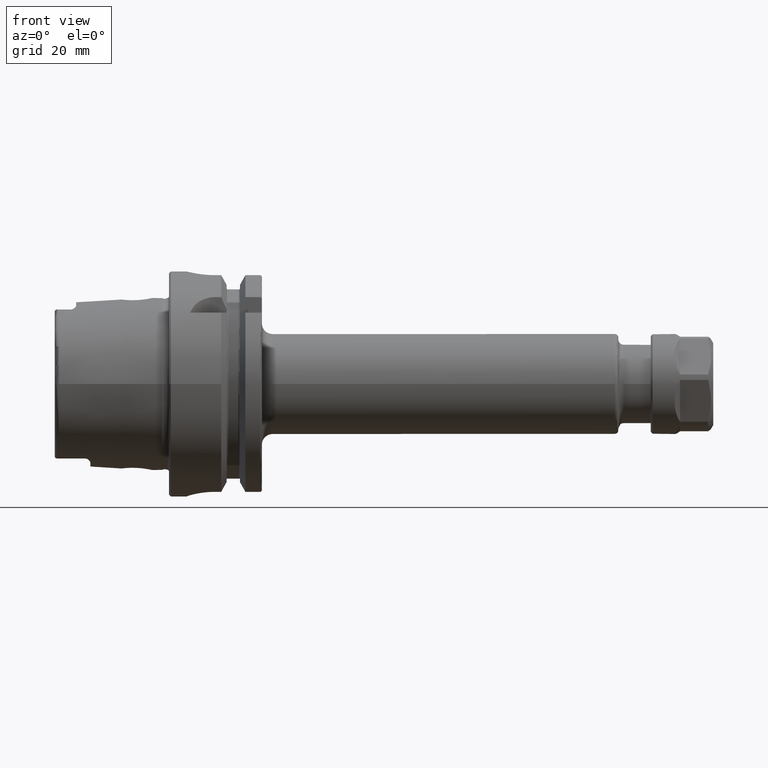
[diagram: clean part render]
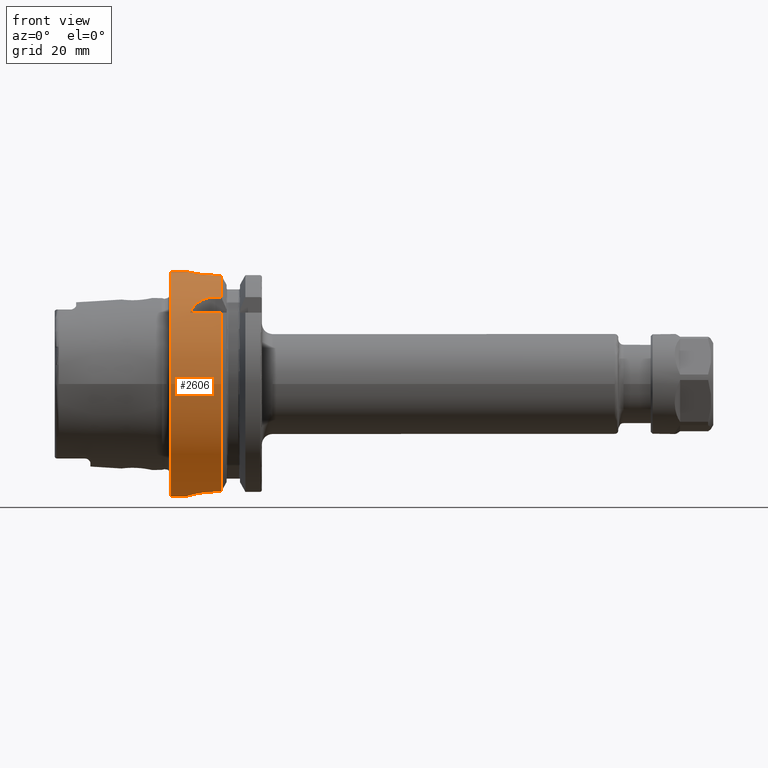
[diagram: same view with one face highlighted and labeled with its STEP entity id]
A machine part, front view. The second image highlights one B-rep face of the part: STEP entity #2606.
In plain terms, the highlighted cylindrical surface (bore or boss wall) has radius 31.5 mm, axis along (1, 0, 0).
Its self-contained STEP definition (entity closure, byte-faithful):
#80=B_SPLINE_CURVE_WITH_KNOTS('',3,(#4692,#4693,#4694,#4695,#4696,#4697,
#4698,#4699,#4700,#4701,#4702,#4703,#4704,#4705,#4706,#4707,#4708,#4709,
#4710,#4711,#4712,#4713,#4714,#4715,#4716,#4717),.UNSPECIFIED.,.F.,.F.,
(4,2,2,2,2,2,2,2,2,2,2,2,4),(0.,0.188688694287612,0.377377388575223,0.56606194688798,
0.754746505200737,0.943431063513494,1.13211562182625,1.32080431611386,1.50949301040147,
1.69818170468909,1.8868703989767,2.07555495728945,2.26423951560221),
 .UNSPECIFIED.);
#81=B_SPLINE_CURVE_WITH_KNOTS('',3,(#4718,#4719,#4720,#4721,#4722,#4723,
#4724,#4725,#4726,#4727),.UNSPECIFIED.,.F.,.F.,(4,2,2,2,4),(2.26423951560221,
2.45292407391497,2.64160863222773,2.83029732651534,3.01898602080295),
 .UNSPECIFIED.);
#84=B_SPLINE_CURVE_WITH_KNOTS('',3,(#4784,#4785,#4786,#4787,#4788,#4789,
#4790,#4791,#4792,#4793,#4794,#4795),.UNSPECIFIED.,.F.,.F.,(4,2,2,2,2,4),
(1.1085154204615,1.31979218709236,1.52798350480179,1.73617482251122,1.90421770126337,
2.07226058001552),.UNSPECIFIED.);
#94=B_SPLINE_CURVE_WITH_KNOTS('',3,(#4964,#4965,#4966,#4967,#4968,#4969,
#4970,#4971,#4972,#4973),.UNSPECIFIED.,.F.,.F.,(4,2,2,2,4),(1.20927420824097,
1.5131742975437,1.81707438684643,2.12000449915965,2.42293461147287),
 .UNSPECIFIED.);
#97=B_SPLINE_CURVE_WITH_KNOTS('',3,(#4999,#5000,#5001,#5002,#5003,#5004,
#5005,#5006,#5007,#5008),.UNSPECIFIED.,.F.,.F.,(4,2,2,2,4),(0.,0.30293011231322,
0.605860224626439,0.90976031392917,1.2136604032319),.UNSPECIFIED.);
#107=B_SPLINE_CURVE_WITH_KNOTS('',3,(#5154,#5155,#5156,#5157,#5158,#5159,
#5160,#5161,#5162,#5163,#5164,#5165,#5166,#5167,#5168,#5169,#5170,#5171),
 .UNSPECIFIED.,.F.,.F.,(4,2,2,2,2,2,2,2,4),(0.,0.302805879979318,0.605611759958635,
0.908372461246501,1.21113316253437,1.51389386382223,1.8166545651101,2.11946044508942,
2.42226632506874),.UNSPECIFIED.);
#158=FACE_BOUND('',#490,.T.);
#330=FACE_OUTER_BOUND('',#489,.T.);
#489=EDGE_LOOP('',(#2119,#2120,#2121,#2122,#2123,#2124,#2125,#2126,#2127,
#2128,#2129,#2130,#2131,#2132,#2133,#2134,#2135,#2136));
#490=EDGE_LOOP('',(#2137,#2138));
#626=LINE('',#4759,#772);
#631=LINE('',#4804,#777);
#649=LINE('',#4981,#795);
#650=LINE('',#4985,#796);
#662=LINE('',#5148,#808);
#665=LINE('',#5178,#811);
#667=LINE('',#5184,#813);
#772=VECTOR('',#3335,10.);
#777=VECTOR('',#3346,10.);
#795=VECTOR('',#3410,10.);
#796=VECTOR('',#3413,10.);
#808=VECTOR('',#3491,10.);
#811=VECTOR('',#3502,10.);
#813=VECTOR('',#3510,31.5);
#926=CIRCLE('',#2857,31.5);
#927=CIRCLE('',#2858,31.5);
#935=CIRCLE('',#2878,31.5);
#936=CIRCLE('',#2880,31.5);
#950=CIRCLE('',#2915,31.5);
#951=CIRCLE('',#2916,31.5);
#1129=VERTEX_POINT('',#4689);
#1130=VERTEX_POINT('',#4691);
#1138=VERTEX_POINT('',#4756);
#1139=VERTEX_POINT('',#4758);
#1143=VERTEX_POINT('',#4783);
#1145=VERTEX_POINT('',#4800);
#1150=VERTEX_POINT('',#4816);
#1151=VERTEX_POINT('',#4818);
#1176=VERTEX_POINT('',#4962);
#1177=VERTEX_POINT('',#4963);
#1178=VERTEX_POINT('',#4983);
#1179=VERTEX_POINT('',#4984);
#1182=VERTEX_POINT('',#4998);
#1183=VERTEX_POINT('',#5013);
#1199=VERTEX_POINT('',#5145);
#1200=VERTEX_POINT('',#5147);
#1201=VERTEX_POINT('',#5153);
#1203=VERTEX_POINT('',#5183);
#1424=EDGE_CURVE('',#1130,#1129,#80,.T.);
#1425=EDGE_CURVE('',#1129,#1130,#81,.T.);
#1434=EDGE_CURVE('',#1139,#1138,#626,.T.);
#1440=EDGE_CURVE('',#1138,#1143,#84,.T.);
#1444=EDGE_CURVE('',#1143,#1145,#631,.T.);
#1450=EDGE_CURVE('',#1139,#1150,#926,.T.);
#1451=EDGE_CURVE('',#1150,#1151,#927,.T.);
#1485=EDGE_CURVE('',#1176,#1177,#94,.T.);
#1489=EDGE_CURVE('',#1177,#1151,#649,.T.);
#1490=EDGE_CURVE('',#1178,#1179,#650,.T.);
#1495=EDGE_CURVE('',#1179,#1182,#97,.T.);
#1497=EDGE_CURVE('',#1182,#1176,#935,.T.);
#1498=EDGE_CURVE('',#1178,#1183,#936,.T.);
#1530=EDGE_CURVE('',#1200,#1199,#662,.T.);
#1532=EDGE_CURVE('',#1199,#1201,#107,.T.);
#1536=EDGE_CURVE('',#1201,#1183,#665,.T.);
#1538=EDGE_CURVE('',#1200,#1145,#950,.T.);
#1539=EDGE_CURVE('',#1150,#1203,#667,.T.);
#1540=EDGE_CURVE('',#1203,#1203,#951,.T.);
#2119=ORIENTED_EDGE('',*,*,#1444,.T.);
#2120=ORIENTED_EDGE('',*,*,#1538,.F.);
#2121=ORIENTED_EDGE('',*,*,#1530,.T.);
#2122=ORIENTED_EDGE('',*,*,#1532,.T.);
#2123=ORIENTED_EDGE('',*,*,#1536,.T.);
#2124=ORIENTED_EDGE('',*,*,#1498,.F.);
#2125=ORIENTED_EDGE('',*,*,#1490,.T.);
#2126=ORIENTED_EDGE('',*,*,#1495,.T.);
#2127=ORIENTED_EDGE('',*,*,#1497,.T.);
#2128=ORIENTED_EDGE('',*,*,#1485,.T.);
#2129=ORIENTED_EDGE('',*,*,#1489,.T.);
#2130=ORIENTED_EDGE('',*,*,#1451,.F.);
#2131=ORIENTED_EDGE('',*,*,#1539,.T.);
#2132=ORIENTED_EDGE('',*,*,#1540,.T.);
#2133=ORIENTED_EDGE('',*,*,#1539,.F.);
#2134=ORIENTED_EDGE('',*,*,#1450,.F.);
#2135=ORIENTED_EDGE('',*,*,#1434,.T.);
#2136=ORIENTED_EDGE('',*,*,#1440,.T.);
#2137=ORIENTED_EDGE('',*,*,#1424,.T.);
#2138=ORIENTED_EDGE('',*,*,#1425,.T.);
#2507=CYLINDRICAL_SURFACE('',#2914,31.5);
#2606=ADVANCED_FACE('',(#330,#158),#2507,.T.);
#2857=AXIS2_PLACEMENT_3D('',#4817,#3359,#3360);
#2858=AXIS2_PLACEMENT_3D('',#4819,#3361,#3362);
#2878=AXIS2_PLACEMENT_3D('',#5011,#3421,#3422);
#2880=AXIS2_PLACEMENT_3D('',#5014,#3425,#3426);
#2914=AXIS2_PLACEMENT_3D('',#5181,#3506,#3507);
#2915=AXIS2_PLACEMENT_3D('',#5182,#3508,#3509);
#2916=AXIS2_PLACEMENT_3D('',#5185,#3511,#3512);
#3335=DIRECTION('',(-1.,0.,0.));
#3346=DIRECTION('',(1.,0.,0.));
#3359=DIRECTION('center_axis',(1.,0.,0.));
#3360=DIRECTION('ref_axis',(0.,0.,-1.));
#3361=DIRECTION('center_axis',(1.,0.,0.));
#3362=DIRECTION('ref_axis',(0.,0.,-1.));
#3410=DIRECTION('',(1.,0.,0.));
#3413=DIRECTION('',(-1.,0.,0.));
#3421=DIRECTION('center_axis',(-1.,0.,0.));
#3422=DIRECTION('ref_axis',(0.,1.,0.));
#3425=DIRECTION('center_axis',(1.,0.,0.));
#3426=DIRECTION('ref_axis',(0.,0.,-1.));
#3491=DIRECTION('',(-1.,0.,0.));
#3502=DIRECTION('',(1.,0.,0.));
#3506=DIRECTION('center_axis',(1.,0.,0.));
#3507=DIRECTION('ref_axis',(0.,1.,0.));
#3508=DIRECTION('center_axis',(1.,0.,0.));
#3509=DIRECTION('ref_axis',(0.,0.,-1.));
#3510=DIRECTION('',(-1.,0.,0.));
#3511=DIRECTION('center_axis',(1.,0.,0.));
#3512=DIRECTION('ref_axis',(0.,0.,-1.));
#4689=CARTESIAN_POINT('',(12.,31.5,-6.12323399573677E-16));
#4691=CARTESIAN_POINT('',(7.,31.100643080168,5.));
#4692=CARTESIAN_POINT('Ctrl Pts',(7.,31.100643080168,5.));
#4693=CARTESIAN_POINT('Ctrl Pts',(6.37103768570796,31.100643080168,5.));
#4694=CARTESIAN_POINT('Ctrl Pts',(5.70089281579202,31.1216953112949,4.87408354368814));
#4695=CARTESIAN_POINT('Ctrl Pts',(4.46931934300962,31.1973810209855,4.36348784122736));
#4696=CARTESIAN_POINT('Ctrl Pts',(3.90779781350673,31.2508828501623,3.97886562537221));
#4697=CARTESIAN_POINT('Ctrl Pts',(3.021144092268,31.3510329557602,3.09221190413348));
#4698=CARTESIAN_POINT('Ctrl Pts',(2.63651425348544,31.4042391414288,2.5306861925578));
#4699=CARTESIAN_POINT('Ctrl Pts',(2.12591301120586,31.4792463697936,1.29909839144709));
#4700=CARTESIAN_POINT('Ctrl Pts',(2.,31.5,0.62894852770919));
#4701=CARTESIAN_POINT('Ctrl Pts',(2.,31.5,-0.62894852770919));
#4702=CARTESIAN_POINT('Ctrl Pts',(2.12591301120586,31.4792463697936,-1.29909839144709));
#4703=CARTESIAN_POINT('Ctrl Pts',(2.63651425348544,31.4042391414288,-2.5306861925578));
#4704=CARTESIAN_POINT('Ctrl Pts',(3.021144092268,31.3510329557602,-3.09221190413348));
#4705=CARTESIAN_POINT('Ctrl Pts',(3.90779781350673,31.2508828501623,-3.97886562537221));
#4706=CARTESIAN_POINT('Ctrl Pts',(4.46931934300962,31.1973810209855,-4.36348784122736));
#4707=CARTESIAN_POINT('Ctrl Pts',(5.70089281579202,31.1216953112949,-4.87408354368814));
#4708=CARTESIAN_POINT('Ctrl Pts',(6.37103768570796,31.100643080168,-5.));
#4709=CARTESIAN_POINT('Ctrl Pts',(7.62896231429204,31.100643080168,-5.));
#4710=CARTESIAN_POINT('Ctrl Pts',(8.29910718420798,31.1216953112949,-4.87408354368814));
#4711=CARTESIAN_POINT('Ctrl Pts',(9.53068065699038,31.1973810209855,-4.36348784122736));
#4712=CARTESIAN_POINT('Ctrl Pts',(10.0922021864933,31.2508828501623,-3.97886562537221));
#4713=CARTESIAN_POINT('Ctrl Pts',(10.978855907732,31.3510329557602,-3.09221190413348));
#4714=CARTESIAN_POINT('Ctrl Pts',(11.3634857465146,31.4042391414288,-2.53068619255779));
#4715=CARTESIAN_POINT('Ctrl Pts',(11.8740869887941,31.4792463697936,-1.29909839144708));
#4716=CARTESIAN_POINT('Ctrl Pts',(12.,31.5,-0.62894852770919));
#4717=CARTESIAN_POINT('Ctrl Pts',(12.,31.5,-4.16333634234434E-16));
#4718=CARTESIAN_POINT('Ctrl Pts',(12.,31.5,-1.11022302462516E-15));
#4719=CARTESIAN_POINT('Ctrl Pts',(12.,31.5,0.628948527709188));
#4720=CARTESIAN_POINT('Ctrl Pts',(11.8740869887941,31.4792463697936,1.29909839144708));
#4721=CARTESIAN_POINT('Ctrl Pts',(11.3634857465146,31.4042391414288,2.53068619255779));
#4722=CARTESIAN_POINT('Ctrl Pts',(10.978855907732,31.3510329557602,3.09221190413348));
#4723=CARTESIAN_POINT('Ctrl Pts',(10.0922021864933,31.2508828501623,3.97886562537221));
#4724=CARTESIAN_POINT('Ctrl Pts',(9.53068065699038,31.1973810209855,4.36348784122736));
#4725=CARTESIAN_POINT('Ctrl Pts',(8.29910718420798,31.1216953112949,4.87408354368814));
#4726=CARTESIAN_POINT('Ctrl Pts',(7.62896231429204,31.100643080168,5.));
#4727=CARTESIAN_POINT('Ctrl Pts',(7.,31.100643080168,5.));
#4756=CARTESIAN_POINT('',(5.88828609634419,-24.3361870472759,20.));
#4758=CARTESIAN_POINT('',(14.6225009252407,-24.3361870472759,20.));
#4759=CARTESIAN_POINT('',(7.56125046262034,-24.3361870472759,20.));
#4783=CARTESIAN_POINT('',(13.,-20.,24.3361870472759));
#4784=CARTESIAN_POINT('Ctrl Pts',(5.88828609634419,-24.3361870472759,20.));
#4785=CARTESIAN_POINT('Ctrl Pts',(6.11069532820048,-23.9044753723342,20.5253108035937));
#4786=CARTESIAN_POINT('Ctrl Pts',(6.38325999044306,-23.4713523250807,21.0173865932788));
#4787=CARTESIAN_POINT('Ctrl Pts',(7.044898076458,-22.6317364276543,21.9186738868096));
#4788=CARTESIAN_POINT('Ctrl Pts',(7.46714468561685,-22.1861072682036,22.3682920878559));
#4789=CARTESIAN_POINT('Ctrl Pts',(8.46725531403812,-21.3767026700071,23.143042657319));
#4790=CARTESIAN_POINT('Ctrl Pts',(9.04646427720221,-21.0147449478223,23.4683362269255));
#4791=CARTESIAN_POINT('Ctrl Pts',(10.1145001432702,-20.5200081116516,23.9011603796022));
#4792=CARTESIAN_POINT('Ctrl Pts',(10.670823971716,-20.3234249831704,24.0673462447194));
#4793=CARTESIAN_POINT('Ctrl Pts',(11.8334528721306,-20.063121855676,24.2847667849476));
#4794=CARTESIAN_POINT('Ctrl Pts',(12.4398570708262,-20.,24.3361870472759));
#4795=CARTESIAN_POINT('Ctrl Pts',(13.,-20.,24.3361870472759));
#4800=CARTESIAN_POINT('',(14.6225009252407,-20.,24.3361870472759));
#4804=CARTESIAN_POINT('',(7.56125046262035,-20.,24.3361870472759));
#4816=CARTESIAN_POINT('',(14.6225009252407,-31.5,-3.85763741731416E-15));
#4817=CARTESIAN_POINT('Origin',(14.6225009252407,0.,0.));
#4818=CARTESIAN_POINT('',(14.6225009252407,-9.,-30.1869176962472));
#4819=CARTESIAN_POINT('Origin',(14.6225009252407,0.,0.));
#4962=CARTESIAN_POINT('',(5.,-0.999999999999999,-31.4841229828623));
#4963=CARTESIAN_POINT('',(13.,-9.,-30.1869176962472));
#4964=CARTESIAN_POINT('Ctrl Pts',(5.,-0.999999999999997,-31.4841229828623));
#4965=CARTESIAN_POINT('Ctrl Pts',(5.,-2.01248971281587,-31.4519642432536));
#4966=CARTESIAN_POINT('Ctrl Pts',(5.2037733306458,-3.08756640398171,-31.3640631381934));
#4967=CARTESIAN_POINT('Ctrl Pts',(6.02370102555041,-5.05836608044729,-31.1070804719497));
#4968=CARTESIAN_POINT('Ctrl Pts',(6.63955745341061,-5.95454409907418,-30.9405445582004));
#4969=CARTESIAN_POINT('Ctrl Pts',(8.05472493283182,-7.36715009628369,-30.6348764237341));
#4970=CARTESIAN_POINT('Ctrl Pts',(8.9496642215883,-7.98063403850821,-30.4752177477269));
#4971=CARTESIAN_POINT('Ctrl Pts',(10.9171740660538,-8.79719825889174,-30.2496070227108));
#4972=CARTESIAN_POINT('Ctrl Pts',(11.9902329589559,-9.,-30.1869176962472));
#4973=CARTESIAN_POINT('Ctrl Pts',(13.,-9.,-30.1869176962472));
#4981=CARTESIAN_POINT('',(7.56125046262035,-8.99999999999999,-30.1869176962472));
#4983=CARTESIAN_POINT('',(14.6225009252407,9.,-30.1869176962472));
#4984=CARTESIAN_POINT('',(13.,9.00000000000001,-30.1869176962472));
#4985=CARTESIAN_POINT('',(7.56125046262034,9.00000000000001,-30.1869176962472));
#4998=CARTESIAN_POINT('',(5.,1.,-31.4841229828623));
#4999=CARTESIAN_POINT('Ctrl Pts',(13.,9.00000000000001,-30.1869176962472));
#5000=CARTESIAN_POINT('Ctrl Pts',(11.9902329589559,9.00000000000001,-30.1869176962472));
#5001=CARTESIAN_POINT('Ctrl Pts',(10.9171740660538,8.79719825889175,-30.2496070227108));
#5002=CARTESIAN_POINT('Ctrl Pts',(8.9496642215883,7.98063403850822,-30.4752177477269));
#5003=CARTESIAN_POINT('Ctrl Pts',(8.05472493283182,7.3671500962837,-30.6348764237341));
#5004=CARTESIAN_POINT('Ctrl Pts',(6.63955745341061,5.95454409907419,-30.9405445582004));
#5005=CARTESIAN_POINT('Ctrl Pts',(6.02370102555041,5.0583660804473,-31.1070804719497));
#5006=CARTESIAN_POINT('Ctrl Pts',(5.2037733306458,3.08756640398172,-31.3640631381934));
#5007=CARTESIAN_POINT('Ctrl Pts',(5.,2.01248971281588,-31.4519642432536));
#5008=CARTESIAN_POINT('Ctrl Pts',(5.,1.00000000000001,-31.4841229828623));
#5011=CARTESIAN_POINT('Origin',(5.,0.,0.));
#5013=CARTESIAN_POINT('',(14.6225009252407,8.,30.4671954731642));
#5014=CARTESIAN_POINT('Origin',(14.6225009252407,0.,0.));
#5145=CARTESIAN_POINT('',(13.,-8.,30.4671954731642));
#5147=CARTESIAN_POINT('',(14.6225009252407,-8.,30.4671954731642));
#5148=CARTESIAN_POINT('',(7.56125046262034,-8.,30.4671954731642));
#5153=CARTESIAN_POINT('',(13.,8.,30.4671954731642));
#5154=CARTESIAN_POINT('Ctrl Pts',(13.,-8.,30.4671954731643));
#5155=CARTESIAN_POINT('Ctrl Pts',(11.9906470667356,-8.,30.4671954731643));
#5156=CARTESIAN_POINT('Ctrl Pts',(10.9172075930168,-7.79737202490167,30.5225803085525));
#5157=CARTESIAN_POINT('Ctrl Pts',(8.94758399331801,-6.97961067526075,30.719895002943));
#5158=CARTESIAN_POINT('Ctrl Pts',(8.05099322370438,-6.36470172268915,30.8586830127239));
#5159=CARTESIAN_POINT('Ctrl Pts',(6.63540388828045,-4.94911238726521,31.1170994373341));
#5160=CARTESIAN_POINT('Ctrl Pts',(6.02041263015313,-4.05247770930662,31.2539072689014));
#5161=CARTESIAN_POINT('Ctrl Pts',(5.20259114887399,-2.08269813865027,31.4466478906396));
#5162=CARTESIAN_POINT('Ctrl Pts',(5.,-1.00920233762622,31.5));
#5163=CARTESIAN_POINT('Ctrl Pts',(5.,1.00920233762622,31.5));
#5164=CARTESIAN_POINT('Ctrl Pts',(5.20259114887399,2.08269813865027,31.4466478906396));
#5165=CARTESIAN_POINT('Ctrl Pts',(6.02041263015313,4.05247770930662,31.2539072689014));
#5166=CARTESIAN_POINT('Ctrl Pts',(6.63540388828045,4.94911238726521,31.1170994373341));
#5167=CARTESIAN_POINT('Ctrl Pts',(8.05099322370439,6.36470172268915,30.8586830127239));
#5168=CARTESIAN_POINT('Ctrl Pts',(8.94758399331801,6.97961067526075,30.719895002943));
#5169=CARTESIAN_POINT('Ctrl Pts',(10.9172075930168,7.79737202490167,30.5225803085525));
#5170=CARTESIAN_POINT('Ctrl Pts',(11.9906470667356,8.,30.4671954731643));
#5171=CARTESIAN_POINT('Ctrl Pts',(13.,8.,30.4671954731643));
#5178=CARTESIAN_POINT('',(7.56125046262035,8.,30.4671954731642));
#5181=CARTESIAN_POINT('Origin',(7.56125046262034,0.,0.));
#5182=CARTESIAN_POINT('Origin',(14.6225009252407,0.,0.));
#5183=CARTESIAN_POINT('',(0.5,-31.5,-3.85763741731416E-15));
#5184=CARTESIAN_POINT('',(7.56125046262034,-31.5,-3.85763741731416E-15));
#5185=CARTESIAN_POINT('Origin',(0.5,0.,0.));